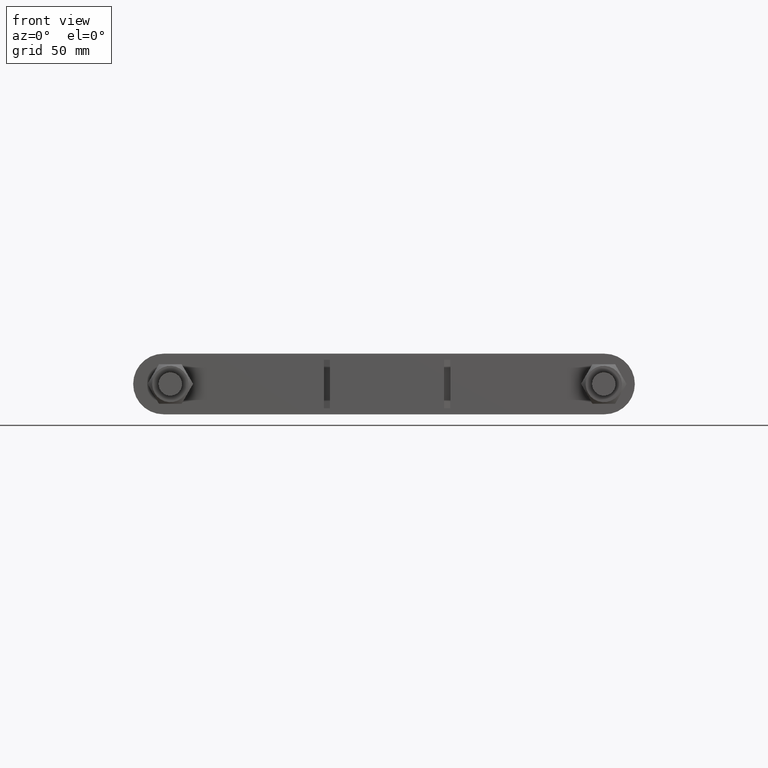
[diagram: clean part render]
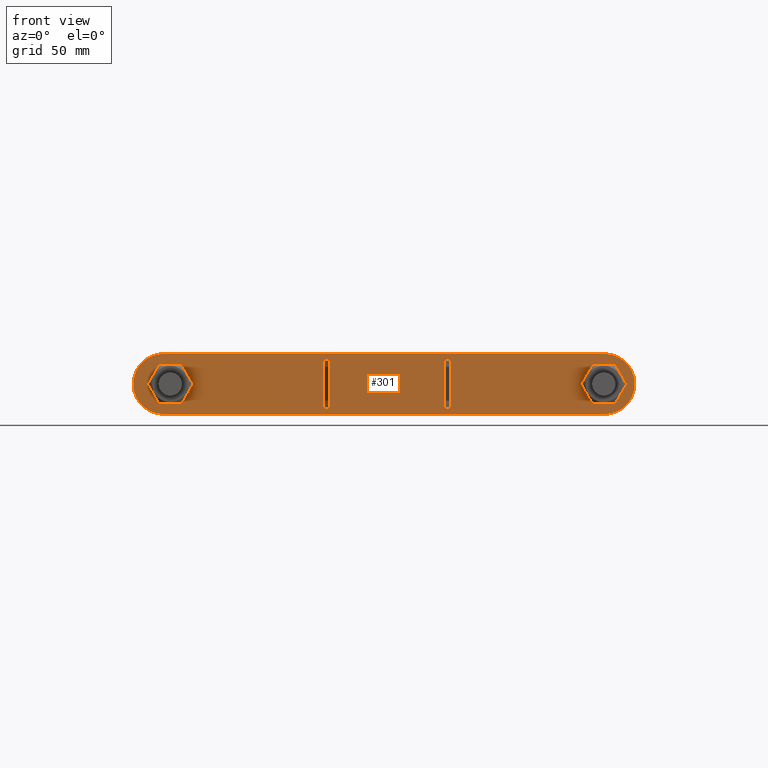
[diagram: same view with one face highlighted and labeled with its STEP entity id]
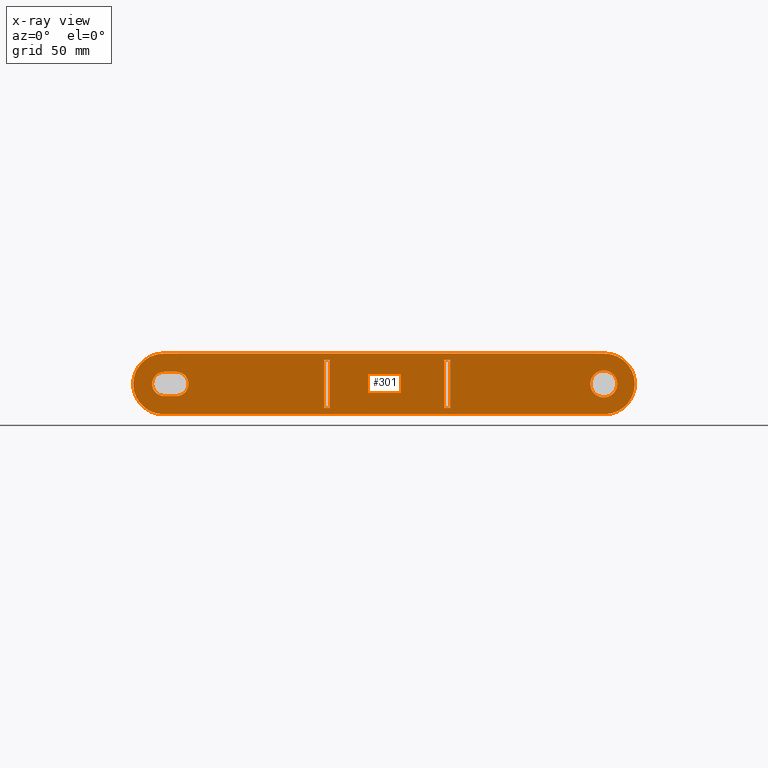
[diagram: x-ray of the same camera — body ghosted, the highlighted face saturated]
A machine part, front view. The second image highlights one B-rep face of the part: STEP entity #301.
The next image is the same camera in x-ray: the body ghosted, the highlighted face saturated — about 0% of this face is hidden behind the body in this view.
In plain terms, the highlighted planar face has unit normal (-0, 1, 0).
Its self-contained STEP definition (entity closure, byte-faithful):
#301 = ADVANCED_FACE( '', ( #441, #442, #443, #444, #445 ), #446, .F. );
#441 = FACE_BOUND( '', #1582, .T. );
#442 = FACE_OUTER_BOUND( '', #1583, .T. );
#443 = FACE_BOUND( '', #1584, .T. );
#444 = FACE_BOUND( '', #1585, .T. );
#445 = FACE_BOUND( '', #1586, .T. );
#446 = PLANE( '', #1587 );
#1582 = EDGE_LOOP( '', ( #2133, #2134, #2135, #2136 ) );
#1583 = EDGE_LOOP( '', ( #2137, #2138, #2139, #2140, #2141, #2142 ) );
#1584 = EDGE_LOOP( '', ( #2143 ) );
#1585 = EDGE_LOOP( '', ( #2144, #2145, #2146, #2147 ) );
#1586 = EDGE_LOOP( '', ( #2148, #2149, #2150, #2151 ) );
#1587 = AXIS2_PLACEMENT_3D( '', #2152, #2153, #2154 );
#2133 = ORIENTED_EDGE( '', *, *, #2642, .F. );
#2134 = ORIENTED_EDGE( '', *, *, #2643, .T. );
#2135 = ORIENTED_EDGE( '', *, *, #2644, .T. );
#2136 = ORIENTED_EDGE( '', *, *, #2645, .F. );
#2137 = ORIENTED_EDGE( '', *, *, #2646, .F. );
#2138 = ORIENTED_EDGE( '', *, *, #2647, .F. );
#2139 = ORIENTED_EDGE( '', *, *, #2648, .F. );
#2140 = ORIENTED_EDGE( '', *, *, #2649, .F. );
#2141 = ORIENTED_EDGE( '', *, *, #2650, .F. );
#2142 = ORIENTED_EDGE( '', *, *, #2651, .F. );
#2143 = ORIENTED_EDGE( '', *, *, #2652, .T. );
#2144 = ORIENTED_EDGE( '', *, *, #2653, .F. );
#2145 = ORIENTED_EDGE( '', *, *, #2654, .F. );
#2146 = ORIENTED_EDGE( '', *, *, #2655, .F. );
#2147 = ORIENTED_EDGE( '', *, *, #2656, .F. );
#2148 = ORIENTED_EDGE( '', *, *, #2657, .T. );
#2149 = ORIENTED_EDGE( '', *, *, #2658, .T. );
#2150 = ORIENTED_EDGE( '', *, *, #2659, .F. );
#2151 = ORIENTED_EDGE( '', *, *, #2660, .F. );
#2152 = CARTESIAN_POINT( '', ( -147.499999999969, 60.3999999977114, 1.03328031514239E-006 ) );
#2153 = DIRECTION( '', ( -1.55166293017277E-011, 1.00000000000000, 1.01088637399885E-011 ) );
#2154 = DIRECTION( '', ( 7.00543067999911E-009, -1.01088636312878E-011, 1.00000000000000 ) );
#2642 = EDGE_CURVE( '', #2870, #2871, #2872, .T. );
#2643 = EDGE_CURVE( '', #2870, #2873, #2874, .T. );
#2644 = EDGE_CURVE( '', #2873, #2875, #2876, .T. );
#2645 = EDGE_CURVE( '', #2871, #2875, #2877, .T. );
#2646 = EDGE_CURVE( '', #2878, #2879, #2880, .T. );
#2647 = EDGE_CURVE( '', #2881, #2878, #2882, .T. );
#2648 = EDGE_CURVE( '', #2883, #2881, #2884, .T. );
#2649 = EDGE_CURVE( '', #2885, #2883, #2886, .T. );
#2650 = EDGE_CURVE( '', #2887, #2885, #2888, .T. );
#2651 = EDGE_CURVE( '', #2879, #2887, #2889, .T. );
#2652 = EDGE_CURVE( '', #2890, #2890, #2891, .T. );
#2653 = EDGE_CURVE( '', #2892, #2893, #2894, .T. );
#2654 = EDGE_CURVE( '', #2895, #2892, #2896, .T. );
#2655 = EDGE_CURVE( '', #2897, #2895, #2898, .T. );
#2656 = EDGE_CURVE( '', #2893, #2897, #2899, .T. );
#2657 = EDGE_CURVE( '', #2900, #2901, #2902, .T. );
#2658 = EDGE_CURVE( '', #2901, #2903, #2904, .T. );
#2659 = EDGE_CURVE( '', #2905, #2903, #2906, .T. );
#2660 = EDGE_CURVE( '', #2900, #2905, #2907, .T. );
#2870 = VERTEX_POINT( '', #3684 );
#2871 = VERTEX_POINT( '', #3685 );
#2872 = LINE( '', #3686, #3687 );
#2873 = VERTEX_POINT( '', #3688 );
#2874 = LINE( '', #3689, #3690 );
#2875 = VERTEX_POINT( '', #3691 );
#2876 = LINE( '', #3692, #3693 );
#2877 = LINE( '', #3694, #3695 );
#2878 = VERTEX_POINT( '', #3696 );
#2879 = VERTEX_POINT( '', #3697 );
#2880 = CIRCLE( '', #3698, 20.0000000000000 );
#2881 = VERTEX_POINT( '', #3699 );
#2882 = CIRCLE( '', #3700, 20.0000000000000 );
#2883 = VERTEX_POINT( '', #3701 );
#2884 = LINE( '', #3702, #3703 );
#2885 = VERTEX_POINT( '', #3704 );
#2886 = CIRCLE( '', #3705, 20.0000000000000 );
#2887 = VERTEX_POINT( '', #3706 );
#2888 = CIRCLE( '', #3707, 20.0000000000000 );
#2889 = LINE( '', #3708, #3709 );
#2890 = VERTEX_POINT( '', #3710 );
#2891 = CIRCLE( '', #3711, 8.89999999999999 );
#2892 = VERTEX_POINT( '', #3712 );
#2893 = VERTEX_POINT( '', #3713 );
#2894 = CIRCLE( '', #3714, 8.00000000000000 );
#2895 = VERTEX_POINT( '', #3715 );
#2896 = LINE( '', #3716, #3717 );
#2897 = VERTEX_POINT( '', #3718 );
#2898 = CIRCLE( '', #3719, 8.00000000000000 );
#2899 = LINE( '', #3720, #3721 );
#2900 = VERTEX_POINT( '', #3722 );
#2901 = VERTEX_POINT( '', #3723 );
#2902 = LINE( '', #3724, #3725 );
#2903 = VERTEX_POINT( '', #3726 );
#2904 = LINE( '', #3727, #3728 );
#2905 = VERTEX_POINT( '', #3729 );
#2906 = LINE( '', #3730, #3731 );
#2907 = LINE( '', #3732, #3733 );
#3684 = CARTESIAN_POINT( '', ( -41.7000001120559, 60.3999999995148, -15.9999997078942 ) );
#3685 = CARTESIAN_POINT( '', ( -37.7000001120560, 60.3999999995769, -15.9999997359160 ) );
#3686 = CARTESIAN_POINT( '', ( -41.7000001120560, 60.3999999995148, -15.9999997078942 ) );
#3687 = VECTOR( '', #4216, 1000.00000000000 );
#3688 = CARTESIAN_POINT( '', ( -41.6999998878821, 60.3999999991913, 16.0000002921057 ) );
#3689 = CARTESIAN_POINT( '', ( -41.7000001120559, 60.3999999995148, -15.9999997078942 ) );
#3690 = VECTOR( '', #4217, 1000.00000000000 );
#3691 = CARTESIAN_POINT( '', ( -37.6999998878821, 60.3999999992534, 16.0000002640840 ) );
#3692 = CARTESIAN_POINT( '', ( -41.6999998878822, 60.3999999991913, 16.0000002921058 ) );
#3693 = VECTOR( '', #4218, 1000.00000000000 );
#3694 = CARTESIAN_POINT( '', ( -37.7000001120560, 60.3999999995769, -15.9999997359160 ) );
#3695 = VECTOR( '', #4219, 1000.00000000000 );
#3696 = CARTESIAN_POINT( '', ( -167.499999999969, 60.3999999974011, 1.17338892874237E-006 ) );
#3697 = CARTESIAN_POINT( '', ( -147.499999859860, 60.3999999975093, 20.0000010332803 ) );
#3698 = AXIS2_PLACEMENT_3D( '', #4220, #4221, #4222 );
#3699 = CARTESIAN_POINT( '', ( -147.500000140078, 60.3999999979136, -19.9999989667197 ) );
#3700 = AXIS2_PLACEMENT_3D( '', #4223, #4224, #4225 );
#3701 = CARTESIAN_POINT( '', ( 143.499999859923, 60.4000000024289, -20.0000010053000 ) );
#3702 = CARTESIAN_POINT( '', ( 143.499999859922, 60.4000000024289, -20.0000010053000 ) );
#3703 = VECTOR( '', #4226, 1000.00000000000 );
#3704 = CARTESIAN_POINT( '', ( 163.500000000031, 60.4000000025371, -1.14540862633729E-006 ) );
#3705 = AXIS2_PLACEMENT_3D( '', #4227, #4228, #4229 );
#3706 = CARTESIAN_POINT( '', ( 143.500000140140, 60.4000000020246, 19.9999989947000 ) );
#3707 = AXIS2_PLACEMENT_3D( '', #4230, #4231, #4232 );
#3708 = CARTESIAN_POINT( '', ( -147.499999859860, 60.3999999975093, 20.0000010332803 ) );
#3709 = VECTOR( '', #4233, 1000.00000000000 );
#3710 = CARTESIAN_POINT( '', ( 151.900000000031, 60.4000000023571, -1.06414565126598E-006 ) );
#3711 = AXIS2_PLACEMENT_3D( '', #4234, #4235, #4236 );
#3712 = CARTESIAN_POINT( '', ( -146.999999943926, 60.3999979976956, 8.00000102977759 ) );
#3713 = CARTESIAN_POINT( '', ( -147.000000056012, 60.3999979978573, -7.99999897022241 ) );
#3714 = AXIS2_PLACEMENT_3D( '', #4237, #4238, #4239 );
#3715 = CARTESIAN_POINT( '', ( -138.999999943926, 60.3999979978197, 8.00000097373415 ) );
#3716 = CARTESIAN_POINT( '', ( -138.999999943926, 60.3999979978197, 8.00000097373415 ) );
#3717 = VECTOR( '', #4240, 1000.00000000000 );
#3718 = CARTESIAN_POINT( '', ( -139.000000056012, 60.3999979979815, -7.99999902626585 ) );
#3719 = AXIS2_PLACEMENT_3D( '', #4241, #4242, #4243 );
#3720 = CARTESIAN_POINT( '', ( -147.000000056012, 60.3999979978573, -7.99999897022241 ) );
#3721 = VECTOR( '', #4244, 1000.00000000000 );
#3722 = CARTESIAN_POINT( '', ( 41.6999998879441, 60.4000000008089, -16.0000002921472 ) );
#3723 = CARTESIAN_POINT( '', ( 37.6999998879442, 60.4000000007468, -16.0000002641254 ) );
#3724 = CARTESIAN_POINT( '', ( 41.6999998879442, 60.4000000008089, -16.0000002921472 ) );
#3725 = VECTOR( '', #4245, 1000.00000000000 );
#3726 = CARTESIAN_POINT( '', ( 37.7000001121180, 60.4000000004234, 15.9999997358746 ) );
#3727 = CARTESIAN_POINT( '', ( 37.6999998879442, 60.4000000007468, -16.0000002641254 ) );
#3728 = VECTOR( '', #4246, 1000.00000000000 );
#3729 = CARTESIAN_POINT( '', ( 41.7000001121179, 60.4000000004854, 15.9999997078528 ) );
#3730 = CARTESIAN_POINT( '', ( 41.7000001121180, 60.4000000004854, 15.9999997078528 ) );
#3731 = VECTOR( '', #4247, 1000.00000000000 );
#3732 = CARTESIAN_POINT( '', ( 41.6999998879441, 60.4000000008089, -16.0000002921472 ) );
#3733 = VECTOR( '', #4248, 1000.00000000000 );
#4216 = DIRECTION( '', ( 1.00000000000000, 1.55165684507082E-011, -7.00543067999895E-009 ) );
#4217 = DIRECTION( '', ( 7.00543067999911E-009, -1.01086085818960E-011, 1.00000000000000 ) );
#4218 = DIRECTION( '', ( 1.00000000000000, 1.55165684507082E-011, -7.00543067999895E-009 ) );
#4219 = DIRECTION( '', ( 7.00543067999911E-009, -1.01086085818960E-011, 1.00000000000000 ) );
#4220 = CARTESIAN_POINT( '', ( -147.499999999969, 60.3999999977114, 1.03328031514239E-006 ) );
#4221 = DIRECTION( '', ( -1.55166293017277E-011, 1.00000000000000, 1.01088637399885E-011 ) );
#4222 = DIRECTION( '', ( -1.00000000000000, -1.55166293725446E-011, 7.00543050652661E-009 ) );
#4223 = CARTESIAN_POINT( '', ( -147.499999999969, 60.3999999977114, 1.03328031514239E-006 ) );
#4224 = DIRECTION( '', ( -1.55166293017277E-011, 1.00000000000000, 1.01088637399885E-011 ) );
#4225 = DIRECTION( '', ( -7.00543067999911E-009, 1.01088636312878E-011, -1.00000000000000 ) );
#4226 = DIRECTION( '', ( -1.00000000000000, -1.55166293725446E-011, 7.00543067999895E-009 ) );
#4227 = CARTESIAN_POINT( '', ( 143.500000000031, 60.4000000022268, -1.00530001273731E-006 ) );
#4228 = DIRECTION( '', ( -1.55166293017277E-011, 1.00000000000000, 1.01088637399885E-011 ) );
#4229 = DIRECTION( '', ( 1.00000000000000, 1.55166293725446E-011, -7.00543050652661E-009 ) );
#4230 = CARTESIAN_POINT( '', ( 143.500000000031, 60.4000000022268, -1.00530001273731E-006 ) );
#4231 = DIRECTION( '', ( -1.55166293017277E-011, 1.00000000000000, 1.01088637399885E-011 ) );
#4232 = DIRECTION( '', ( 7.00543067999911E-009, -1.01088636312878E-011, 1.00000000000000 ) );
#4233 = DIRECTION( '', ( 1.00000000000000, 1.55166293725446E-011, -7.00543067999895E-009 ) );
#4234 = CARTESIAN_POINT( '', ( 143.000000000031, 60.4000000022190, -1.00179731821399E-006 ) );
#4235 = DIRECTION( '', ( -1.55166293017277E-011, 1.00000000000000, 1.01088637399885E-011 ) );
#4236 = DIRECTION( '', ( 1.00000000000000, 1.55166293725446E-011, -7.00543067999895E-009 ) );
#4237 = CARTESIAN_POINT( '', ( -146.999999999969, 60.3999979977765, 1.02977759284328E-006 ) );
#4238 = DIRECTION( '', ( 1.55166293017277E-011, -1.00000000000000, -1.01088637399885E-011 ) );
#4239 = DIRECTION( '', ( 7.00543067999911E-009, -1.01088636312878E-011, 1.00000000000000 ) );
#4240 = DIRECTION( '', ( -1.00000000000000, -1.55166293725446E-011, 7.00543067999895E-009 ) );
#4241 = CARTESIAN_POINT( '', ( -138.999999999969, 60.3999979979006, 9.73734147403288E-007 ) );
#4242 = DIRECTION( '', ( 1.55166293017277E-011, -1.00000000000000, -1.01088637399885E-011 ) );
#4243 = DIRECTION( '', ( -7.00543067999911E-009, 1.01088636312878E-011, -1.00000000000000 ) );
#4244 = DIRECTION( '', ( 1.00000000000000, 1.55166293725446E-011, -7.00543067999895E-009 ) );
#4245 = DIRECTION( '', ( -1.00000000000000, -1.55165678337456E-011, 7.00543067999895E-009 ) );
#4246 = DIRECTION( '', ( 7.00543067999911E-009, -1.01086085818960E-011, 1.00000000000000 ) );
#4247 = DIRECTION( '', ( -1.00000000000000, -1.55165678337456E-011, 7.00543067999895E-009 ) );
#4248 = DIRECTION( '', ( 7.00543067999911E-009, -1.01086085818960E-011, 1.00000000000000 ) );